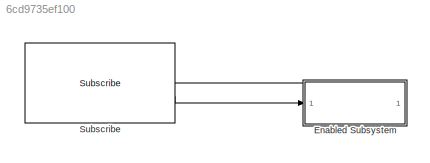
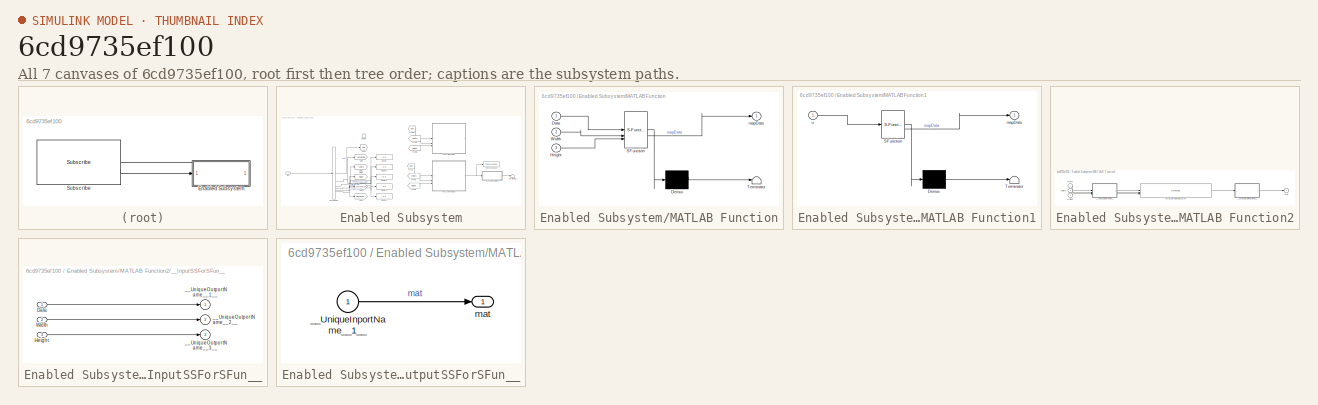
[diagram: thumbnail index - all 7 canvases of the model, root first then tree order]
MODEL slx_6cd9735ef100
KIND model
CONFIG AbsTol = auto
CONFIG EnableMultiTasking = off
CONFIG FixedStep = auto
CONFIG MaxStep = auto
CONFIG MinStep = auto
CONFIG RelTol = 1e-3
CONFIG SampleTimeConstraint = Unconstrained
CONFIG SolverName = FixedStepAuto
CONFIG StartTime = 0.0
CONFIG StopTime = Inf
WORKSPACE source: mxarray member
WORKSPACE SL_ROS_VariableLengthArrays_MaxSizes: object (value not decoded)
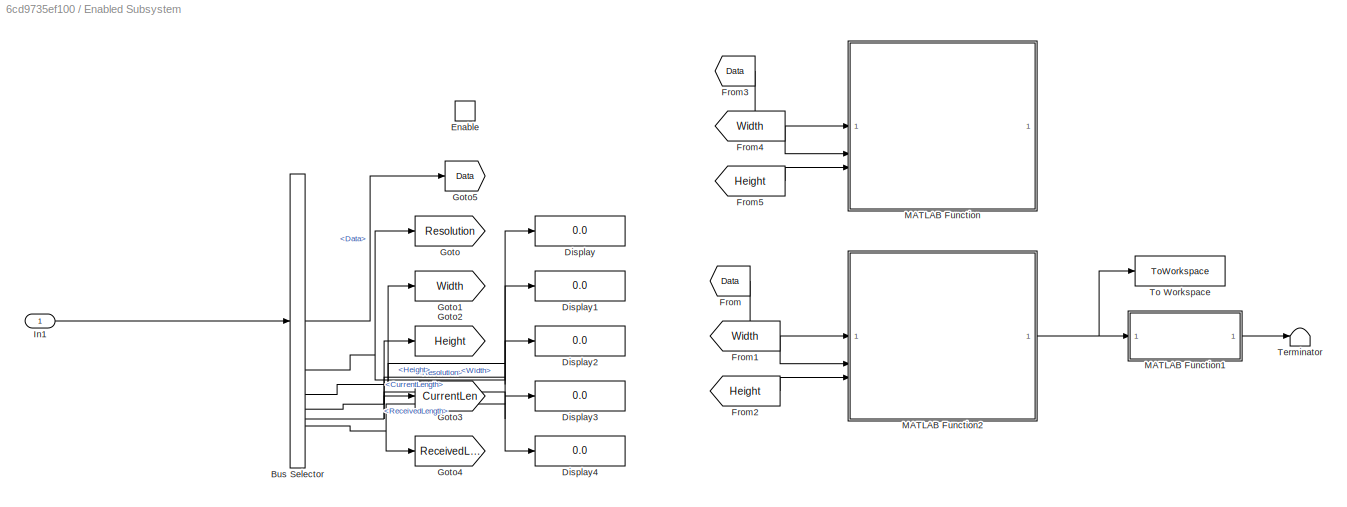
BLOCK [SubSystem] Enabled Subsystem
  TreatAsAtomicUnit = on
BLOCK [BusSelector] Enabled Subsystem/Bus Selector
  OutputSignals = Data,Info.Resolution,Info.Width,Info.Height,Data_SL_Info.CurrentLength,Data_SL_Info.ReceivedLength
BLOCK [Display] Enabled Subsystem/Display
  Decimation = 1
BLOCK [Display] Enabled Subsystem/Display1
  Decimation = 1
BLOCK [Display] Enabled Subsystem/Display2
  Decimation = 1
BLOCK [Display] Enabled Subsystem/Display3
  Decimation = 1
BLOCK [Display] Enabled Subsystem/Display4
  Decimation = 1
BLOCK [EnablePort] Enabled Subsystem/Enable
BLOCK [From] Enabled Subsystem/From
  GotoTag = Data
BLOCK [From] Enabled Subsystem/From1
  GotoTag = Width
BLOCK [From] Enabled Subsystem/From2
  GotoTag = Height
BLOCK [From] Enabled Subsystem/From3
  Commented = on
  GotoTag = Data
BLOCK [From] Enabled Subsystem/From4
  Commented = on
  GotoTag = Width
BLOCK [From] Enabled Subsystem/From5
  Commented = on
  GotoTag = Height
BLOCK [Goto] Enabled Subsystem/Goto
  GotoTag = Resolution
BLOCK [Goto] Enabled Subsystem/Goto1
  GotoTag = Width
BLOCK [Goto] Enabled Subsystem/Goto2
  GotoTag = Height
BLOCK [Goto] Enabled Subsystem/Goto3
  GotoTag = CurrentLen
BLOCK [Goto] Enabled Subsystem/Goto4
  GotoTag = ReceivedLen
BLOCK [Goto] Enabled Subsystem/Goto5
  GotoTag = Data
BLOCK [Inport] Enabled Subsystem/In1
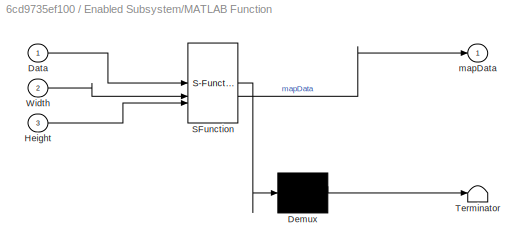
BLOCK [SubSystem] Enabled Subsystem/MATLAB Function
  Commented = on
  ErrorFcn = Stateflow.Translate.translate
  LibrarySourceBlock = simulink/User-Defined\nFunctions/MATLAB Function
  PermitHierarchicalResolution = ExplicitOnly
  SFBlockType = MATLAB Function
  TreatAsAtomicUnit = on
BLOCK [Demux] Enabled Subsystem/MATLAB Function/ Demux 
  Outputs = 1
BLOCK [S-Function] Enabled Subsystem/MATLAB Function/ SFunction 
  EnableBusSupport = on
  FunctionName = sf_sfun
  PortCounts = [3 2]
  SFcnIsStateOwnerBlock = off
  SFunctionDeploymentMode = off
  Tag = Stateflow S-Function 2
BLOCK [Terminator] Enabled Subsystem/MATLAB Function/ Terminator 
BLOCK [Inport] Enabled Subsystem/MATLAB Function/Data
BLOCK [Inport] Enabled Subsystem/MATLAB Function/Height
  Port = 3
BLOCK [Inport] Enabled Subsystem/MATLAB Function/Width
  Port = 2
BLOCK [Outport] Enabled Subsystem/MATLAB Function/mapData
BLOCK [SubSystem] Enabled Subsystem/MATLAB Function1
  ErrorFcn = Stateflow.Translate.translate
  LibrarySourceBlock = simulink/User-Defined\nFunctions/MATLAB Function
  PermitHierarchicalResolution = ExplicitOnly
  SFBlockType = MATLAB Function
  TreatAsAtomicUnit = on
BLOCK [Demux] Enabled Subsystem/MATLAB Function1/ Demux 
  Outputs = 1
BLOCK [S-Function] Enabled Subsystem/MATLAB Function1/ SFunction 
  EnableBusSupport = on
  FunctionName = sf_sfun
  PortCounts = [1 2]
  SFcnIsStateOwnerBlock = off
  SFunctionDeploymentMode = off
  Tag = Stateflow S-Function 1
BLOCK [Terminator] Enabled Subsystem/MATLAB Function1/ Terminator 
BLOCK [Outport] Enabled Subsystem/MATLAB Function1/mapData
BLOCK [Inport] Enabled Subsystem/MATLAB Function1/u
BLOCK [SubSystem] Enabled Subsystem/MATLAB Function2
BLOCK [Inport] Enabled Subsystem/MATLAB Function2/Data
BLOCK [Inport] Enabled Subsystem/MATLAB Function2/Height
  Port = 3
BLOCK [S-Function] Enabled Subsystem/MATLAB Function2/MATLAB Function_sfcn
  CopyFcn = if ~strcmp(get_param(gcb,'Linkstatus'),'none') && ...\n~strcmp(get_param(gcb,'Linkstatus'),'implicit')      \n  set_param(gcb,'LinkStatus','none');                \nend
  EnableBusSupport = off
  FunctionName = MATLAB0_sf
  SFcnIsStateOwnerBlock = off
  SFunctionDeploymentMode = off
BLOCK [Inport] Enabled Subsystem/MATLAB Function2/Width
  Port = 2
BLOCK [SubSystem] Enabled Subsystem/MATLAB Function2/__InputSSForSFun__
  PermitHierarchicalResolution = ExplicitOnly
BLOCK [Inport] Enabled Subsystem/MATLAB Function2/__InputSSForSFun__/Data
BLOCK [Inport] Enabled Subsystem/MATLAB Function2/__InputSSForSFun__/Height
  Port = 3
BLOCK [Inport] Enabled Subsystem/MATLAB Function2/__InputSSForSFun__/Width
  Port = 2
BLOCK [Outport] Enabled Subsystem/MATLAB Function2/__InputSSForSFun__/__UniqueOutportName__1__
BLOCK [Outport] Enabled Subsystem/MATLAB Function2/__InputSSForSFun__/__UniqueOutportName__2__
  Port = 2
BLOCK [Outport] Enabled Subsystem/MATLAB Function2/__InputSSForSFun__/__UniqueOutportName__3__
  Port = 3
BLOCK [SubSystem] Enabled Subsystem/MATLAB Function2/__OutputSSForSFun__
  PermitHierarchicalResolution = ExplicitOnly
BLOCK [Inport] Enabled Subsystem/MATLAB Function2/__OutputSSForSFun__/__UniqueInportName__1__
BLOCK [Outport] Enabled Subsystem/MATLAB Function2/__OutputSSForSFun__/mat
BLOCK [Outport] Enabled Subsystem/MATLAB Function2/mat
BLOCK [Terminator] Enabled Subsystem/Terminator
BLOCK [ToWorkspace] Enabled Subsystem/To Workspace
  FixptAsFi = on
  MaxDataPoints = inf
  SampleTime = -1
  SaveFormat = Structure With Time
  VariableName = simout
BLOCK [Reference] Subscribe  REF=robotlib/Subscribe
  SourceBlock = robotlib/Subscribe
  SourceType = ROS Subscribe
LINE Enabled Subsystem/Bus Selector:1 -> Enabled Subsystem/Goto5:1
NET Enabled Subsystem/Bus Selector:2 -> Enabled Subsystem/Display:1, Enabled Subsystem/Goto:1
NET Enabled Subsystem/Bus Selector:3 -> Enabled Subsystem/Display1:1, Enabled Subsystem/Goto1:1
NET Enabled Subsystem/Bus Selector:4 -> Enabled Subsystem/Display2:1, Enabled Subsystem/Goto2:1
NET Enabled Subsystem/Bus Selector:5 -> Enabled Subsystem/Display3:1, Enabled Subsystem/Goto3:1
NET Enabled Subsystem/Bus Selector:6 -> Enabled Subsystem/Display4:1, Enabled Subsystem/Goto4:1
LINE Enabled Subsystem/From1:1 -> Enabled Subsystem/MATLAB Function2:2
LINE Enabled Subsystem/From2:1 -> Enabled Subsystem/MATLAB Function2:3
LINE Enabled Subsystem/From3:1 -> Enabled Subsystem/MATLAB Function:1
LINE Enabled Subsystem/From4:1 -> Enabled Subsystem/MATLAB Function:2
LINE Enabled Subsystem/From5:1 -> Enabled Subsystem/MATLAB Function:3
LINE Enabled Subsystem/From:1 -> Enabled Subsystem/MATLAB Function2:1
LINE Enabled Subsystem/In1:1 -> Enabled Subsystem/Bus Selector:1
LINE Enabled Subsystem/MATLAB Function1:1 -> Enabled Subsystem/Terminator:1
LINE Enabled Subsystem/MATLAB Function2/Data:1 -> Enabled Subsystem/MATLAB Function2/__InputSSForSFun__:1
LINE Enabled Subsystem/MATLAB Function2/Height:1 -> Enabled Subsystem/MATLAB Function2/__InputSSForSFun__:3
LINE Enabled Subsystem/MATLAB Function2/MATLAB Function_sfcn:1 -> Enabled Subsystem/MATLAB Function2/__OutputSSForSFun__:1
LINE Enabled Subsystem/MATLAB Function2/Width:1 -> Enabled Subsystem/MATLAB Function2/__InputSSForSFun__:2
LINE Enabled Subsystem/MATLAB Function2/__InputSSForSFun__/Data:1 -> Enabled Subsystem/MATLAB Function2/__InputSSForSFun__/__UniqueOutportName__1__:1
LINE Enabled Subsystem/MATLAB Function2/__InputSSForSFun__/Height:1 -> Enabled Subsystem/MATLAB Function2/__InputSSForSFun__/__UniqueOutportName__3__:1
LINE Enabled Subsystem/MATLAB Function2/__InputSSForSFun__/Width:1 -> Enabled Subsystem/MATLAB Function2/__InputSSForSFun__/__UniqueOutportName__2__:1
LINE Enabled Subsystem/MATLAB Function2/__InputSSForSFun__:1 -> Enabled Subsystem/MATLAB Function2/MATLAB Function_sfcn:1
LINE Enabled Subsystem/MATLAB Function2/__InputSSForSFun__:2 -> Enabled Subsystem/MATLAB Function2/MATLAB Function_sfcn:2
LINE Enabled Subsystem/MATLAB Function2/__InputSSForSFun__:3 -> Enabled Subsystem/MATLAB Function2/MATLAB Function_sfcn:3
LINE Enabled Subsystem/MATLAB Function2/__OutputSSForSFun__/__UniqueInportName__1__:1 -> Enabled Subsystem/MATLAB Function2/__OutputSSForSFun__/mat:1
LINE Enabled Subsystem/MATLAB Function2/__OutputSSForSFun__:1 -> Enabled Subsystem/MATLAB Function2/mat:1
NET Enabled Subsystem/MATLAB Function2:1 -> Enabled Subsystem/MATLAB Function1:1, Enabled Subsystem/To Workspace:1
LINE Subscribe:1 -> Enabled Subsystem:enable
LINE Subscribe:2 -> Enabled Subsystem:1
note: NET lines group one-source signal fan-out (src -> all destinations, sorted); 1:1 wires keep LINE
CHART Enabled
Subsystem/MATLAB Function states=1 transitions=1
  STATE_LABEL 'eML_blk_kernel()'
  STATE_LABEL 'SCRIPT:\nfunction mapData = msg2matrix(Data,Width,Height)\n\nmapData = zeros(2048,2048,\'uint8\');\n\nif(Width ~= 0 && Height ~= 0)\n    Data(Data < 0) = 50;\n    for i = 1:Height\n        idxstart = Width*(i-1)+1;\n        idxend = Width*i;\n        mapData(i,:) = Data(idxstart:idxend);\n    end\n    mapData = mapData ./ 100;\n    \nelse\n    disp("msg2matrix : No Data")\nend\n\n'
CHART Enabled
Subsystem/MATLAB Function1 states=1 transitions=1
  STATE_LABEL 'eML_blk_kernel()'
  STATE_LABEL 'SCRIPT:\nfunction mapData = fcn(u)\n\nif(~isempty(u))\n    map = occupancyMap(u,20);\n    mapData = occupancyMatrix(map);\n    disp(size(mapData))\nelse\n    disp("mapData Fail")\n    mapData = zeros(2048,2048);\nend\n\n'
CHART  states=0 transitions=0
CHART  states=0 transitions=0
